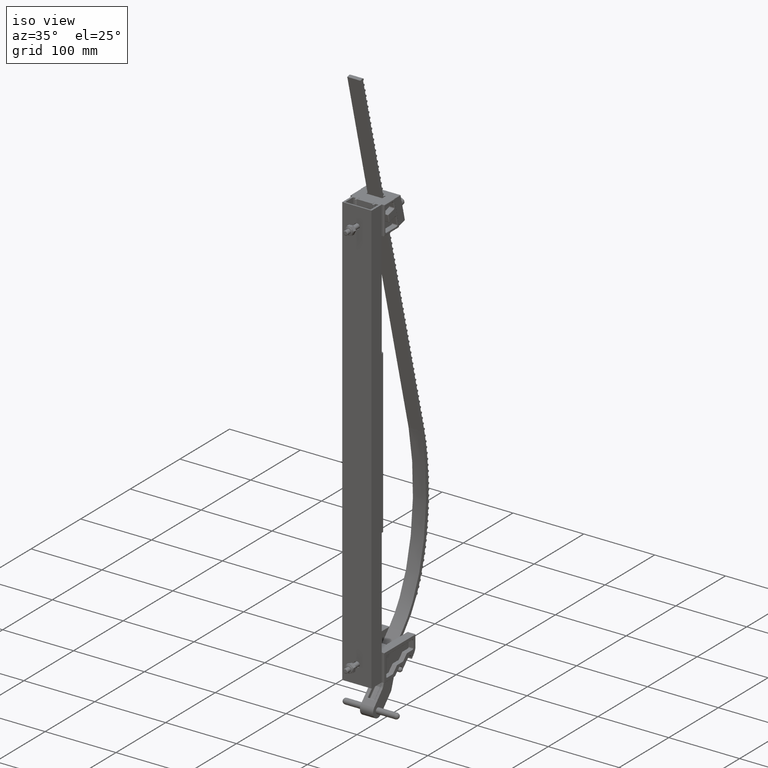
[diagram: clean part render]
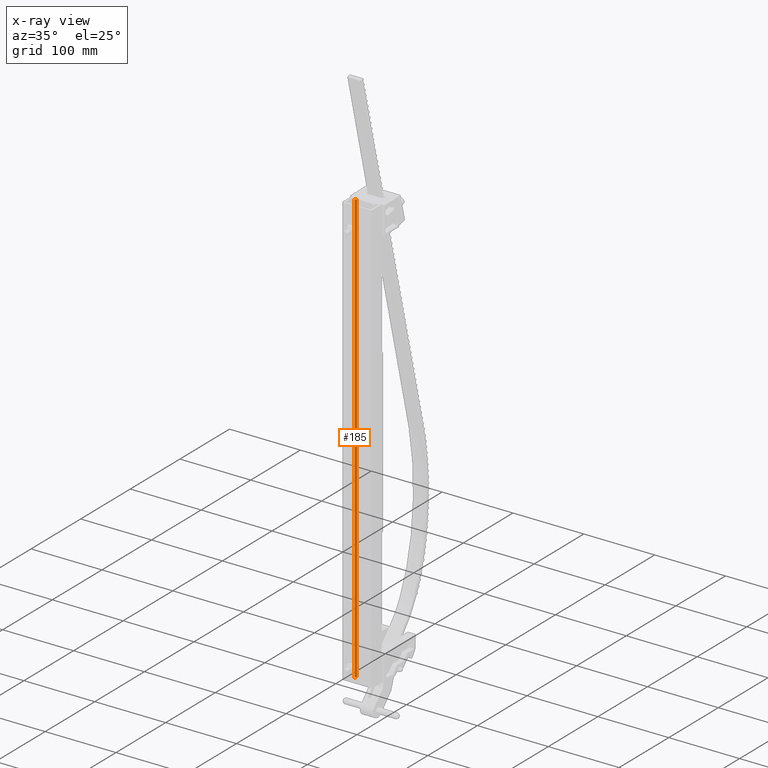
[diagram: x-ray — body ghosted, one internal face saturated and labeled with its STEP entity id]
A machine part, iso view, then the same camera in x-ray: the body is ghosted and one INTERNAL B-rep face — a face not visible from any outside direction — is saturated and labeled: STEP entity #185.
In plain terms, the highlighted planar face has unit normal (0.8034, -0.5955, 0).
Its self-contained STEP definition (entity closure, byte-faithful):
#185 = ADVANCED_FACE ( 'NONE', ( #11586 ), #19960, .T. ) ;
#8780 = AXIS2_PLACEMENT_3D ( 'NONE', #19949, #19972, #19974 ) ;
#9620 = ORIENTED_EDGE ( 'NONE', *, *, #39172, .F. ) ;
#9623 = ORIENTED_EDGE ( 'NONE', *, *, #39186, .F. ) ;
#9625 = ORIENTED_EDGE ( 'NONE', *, *, #39168, .T. ) ;
#9627 = ORIENTED_EDGE ( 'NONE', *, *, #39185, .T. ) ;
#11586 = FACE_OUTER_BOUND ( 'NONE', #43750, .T. ) ;
#19480 = CARTESIAN_POINT ( 'NONE',  ( -0.4999999999999999400, 0.5279999999999999100, 12.00000000000000200 ) ) ;
#19481 = CARTESIAN_POINT ( 'NONE',  ( -0.4284999999999999400, 0.6244621909491435700, 12.00000000000000200 ) ) ;
#19486 = CARTESIAN_POINT ( 'NONE',  ( -0.4284999999999999400, 0.6244621909491435700, -12.00000000000000200 ) ) ;
#19487 = CARTESIAN_POINT ( 'NONE',  ( -0.4999999999999999400, 0.5279999999999999100, -12.00000000000000200 ) ) ;
#19949 = CARTESIAN_POINT ( 'NONE',  ( -0.4284999999999999400, 0.6244621909491435700, 12.00000000000000200 ) ) ;
#19960 = PLANE ( 'NONE',  #8780 ) ;
#19972 = DIRECTION ( 'NONE',  ( 0.8033718235284639200, -0.5954777184417152600, 0.0000000000000000000 ) ) ;
#19974 = DIRECTION ( 'NONE',  ( 0.5954777184417151500, 0.8033718235284638100, 0.0000000000000000000 ) ) ;
#22156 = CARTESIAN_POINT ( 'NONE',  ( -0.4284999999999999400, 0.6244621909491435700, 12.00000000000000200 ) ) ;
#22157 = DIRECTION ( 'NONE',  ( -0.5954777184417151500, -0.8033718235284638100, 0.0000000000000000000 ) ) ;
#22162 = CARTESIAN_POINT ( 'NONE',  ( -0.4284999999999999400, 0.6244621909491435700, -12.00000000000000200 ) ) ;
#22166 = DIRECTION ( 'NONE',  ( -0.5954777184417151500, -0.8033718235284638100, 0.0000000000000000000 ) ) ;
#22192 = CARTESIAN_POINT ( 'NONE',  ( -0.4999999999999999400, 0.5279999999999999100, 12.00000000000000200 ) ) ;
#22193 = DIRECTION ( 'NONE',  ( -0.0000000000000000000, -0.0000000000000000000, -1.000000000000000000 ) ) ;
#22194 = CARTESIAN_POINT ( 'NONE',  ( -0.4284999999999999400, 0.6244621909491435700, 12.00000000000000200 ) ) ;
#22195 = DIRECTION ( 'NONE',  ( -0.0000000000000000000, -0.0000000000000000000, -1.000000000000000000 ) ) ;
#22698 = LINE ( 'NONE', #22156, #22699 ) ;
#22699 = VECTOR ( 'NONE', #22157, 39.37007874015748900 ) ;
#22701 = LINE ( 'NONE', #22162, #22706 ) ;
#22706 = VECTOR ( 'NONE', #22166, 39.37007874015748900 ) ;
#22730 = LINE ( 'NONE', #22192, #22731 ) ;
#22731 = VECTOR ( 'NONE', #22193, 39.37007874015748100 ) ;
#22732 = LINE ( 'NONE', #22194, #22733 ) ;
#22733 = VECTOR ( 'NONE', #22195, 39.37007874015748100 ) ;
#38030 = VERTEX_POINT ( 'NONE', #19480 ) ;
#38031 = VERTEX_POINT ( 'NONE', #19481 ) ;
#38036 = VERTEX_POINT ( 'NONE', #19486 ) ;
#38037 = VERTEX_POINT ( 'NONE', #19487 ) ;
#39168 = EDGE_CURVE ( 'NONE', #38031, #38030, #22698, .T. ) ;
#39172 = EDGE_CURVE ( 'NONE', #38036, #38037, #22701, .T. ) ;
#39185 = EDGE_CURVE ( 'NONE', #38030, #38037, #22730, .T. ) ;
#39186 = EDGE_CURVE ( 'NONE', #38031, #38036, #22732, .T. ) ;
#43750 = EDGE_LOOP ( 'NONE', ( #9620, #9623, #9625, #9627 ) ) ;